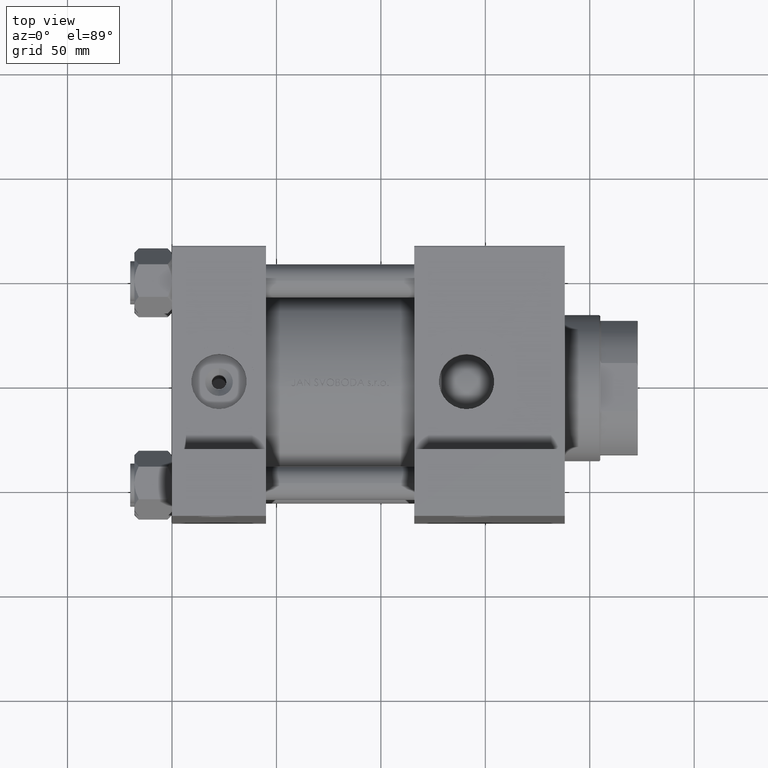
[diagram: clean part render]
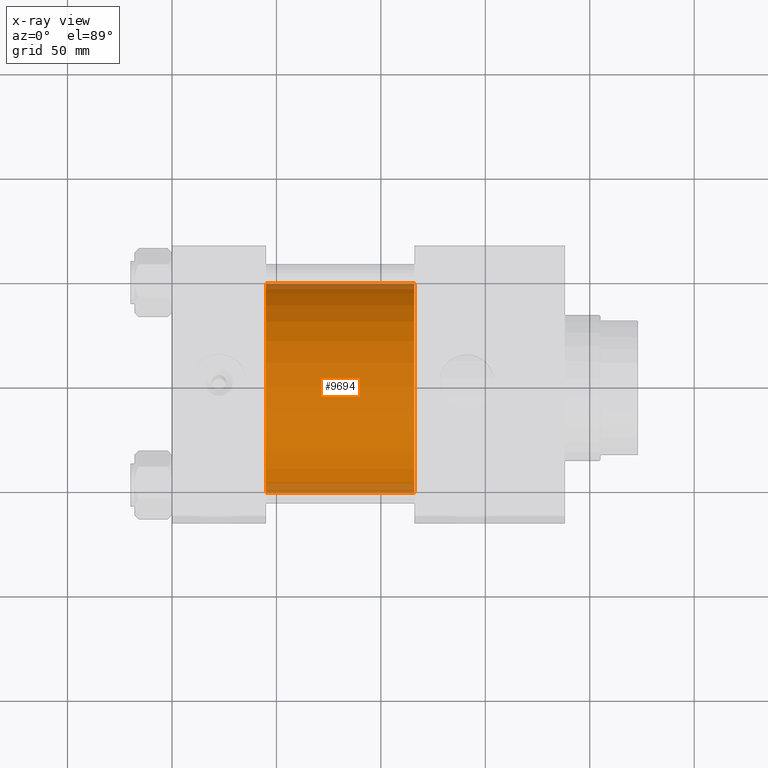
[diagram: x-ray — body ghosted, one internal face saturated and labeled with its STEP entity id]
A machine part, top view, then the same camera in x-ray: the body is ghosted and one INTERNAL B-rep face — a face not visible from any outside direction — is saturated and labeled: STEP entity #9694.
In plain terms, the highlighted cylindrical surface (partial cylindrical patch) has radius 50 mm, axis along (-1, -0, 0).
Its self-contained STEP definition (entity closure, byte-faithful):
#1965 = CARTESIAN_POINT ( 'NONE',  ( 115.9999999999999858, 0.000000000000000000, -1.999999999999988010 ) ) ;
#1979 = ORIENTED_EDGE ( 'NONE', *, *, #14561, .F. ) ;
#2123 = DIRECTION ( 'NONE',  ( -1.000000000000000000, -0.000000000000000000, -0.000000000000000000 ) ) ;
#2224 = DIRECTION ( 'NONE',  ( 0.000000000000000000, 0.000000000000000000, 1.000000000000000000 ) ) ;
#2267 = DIRECTION ( 'NONE',  ( 1.000000000000000000, 0.000000000000000000, 0.000000000000000000 ) ) ;
#3075 = CARTESIAN_POINT ( 'NONE',  ( 115.9999999999999858, 6.123233995736766085E-15, -51.99999999999999289 ) ) ;
#3719 = LINE ( 'NONE', #37650, #19097 ) ;
#5258 = AXIS2_PLACEMENT_3D ( 'NONE', #17619, #33329, #29531 ) ;
#5512 = CYLINDRICAL_SURFACE ( 'NONE', #27564, 50.00000000000000000 ) ;
#7830 = AXIS2_PLACEMENT_3D ( 'NONE', #22001, #2267, #32942 ) ;
#7962 = CARTESIAN_POINT ( 'NONE',  ( 45.00000000000000000, 6.123233995736766085E-15, -51.99999999999999289 ) ) ;
#9694 = ADVANCED_FACE ( 'NONE', ( #36675 ), #5512, .F. ) ;
#14561 = EDGE_CURVE ( 'NONE', #35981, #39352, #46864, .T. ) ;
#16024 = VERTEX_POINT ( 'NONE', #3075 ) ;
#17619 = CARTESIAN_POINT ( 'NONE',  ( 45.00000000000000000, 0.000000000000000000, -1.999999999999988010 ) ) ;
#19097 = VECTOR ( 'NONE', #46514, 1000.000000000000000 ) ;
#20950 = VERTEX_POINT ( 'NONE', #7962 ) ;
#22001 = CARTESIAN_POINT ( 'NONE',  ( 115.9999999999999858, 0.000000000000000000, -1.999999999999988010 ) ) ;
#25294 = CARTESIAN_POINT ( 'NONE',  ( 45.00000000000000000, 0.000000000000000000, 48.00000000000001421 ) ) ;
#25494 = CIRCLE ( 'NONE', #5258, 50.00000000000000000 ) ;
#25677 = EDGE_CURVE ( 'NONE', #16024, #20950, #3719, .T. ) ;
#27564 = AXIS2_PLACEMENT_3D ( 'NONE', #1965, #44523, #2224 ) ;
#29531 = DIRECTION ( 'NONE',  ( 0.000000000000000000, 0.000000000000000000, -1.000000000000000000 ) ) ;
#29699 = CIRCLE ( 'NONE', #7830, 50.00000000000000000 ) ;
#31959 = ORIENTED_EDGE ( 'NONE', *, *, #25677, .T. ) ;
#32942 = DIRECTION ( 'NONE',  ( 0.000000000000000000, 0.000000000000000000, -1.000000000000000000 ) ) ;
#33329 = DIRECTION ( 'NONE',  ( 1.000000000000000000, 0.000000000000000000, 0.000000000000000000 ) ) ;
#34232 = VECTOR ( 'NONE', #2123, 1000.000000000000000 ) ;
#35384 = CARTESIAN_POINT ( 'NONE',  ( 115.9999999999999858, 0.000000000000000000, 48.00000000000001421 ) ) ;
#35457 = CARTESIAN_POINT ( 'NONE',  ( 115.9999999999999858, 0.000000000000000000, 48.00000000000001421 ) ) ;
#35849 = ORIENTED_EDGE ( 'NONE', *, *, #49564, .T. ) ;
#35981 = VERTEX_POINT ( 'NONE', #35384 ) ;
#36675 = FACE_OUTER_BOUND ( 'NONE', #40788, .T. ) ;
#37650 = CARTESIAN_POINT ( 'NONE',  ( 115.9999999999999858, 6.123233995736766085E-15, -51.99999999999999289 ) ) ;
#39352 = VERTEX_POINT ( 'NONE', #25294 ) ;
#40788 = EDGE_LOOP ( 'NONE', ( #35849, #31959, #49710, #1979 ) ) ;
#44523 = DIRECTION ( 'NONE',  ( -1.000000000000000000, -0.000000000000000000, -0.000000000000000000 ) ) ;
#44805 = EDGE_CURVE ( 'NONE', #39352, #20950, #25494, .T. ) ;
#46514 = DIRECTION ( 'NONE',  ( -1.000000000000000000, -0.000000000000000000, -0.000000000000000000 ) ) ;
#46864 = LINE ( 'NONE', #35457, #34232 ) ;
#49564 = EDGE_CURVE ( 'NONE', #35981, #16024, #29699, .T. ) ;
#49710 = ORIENTED_EDGE ( 'NONE', *, *, #44805, .F. ) ;